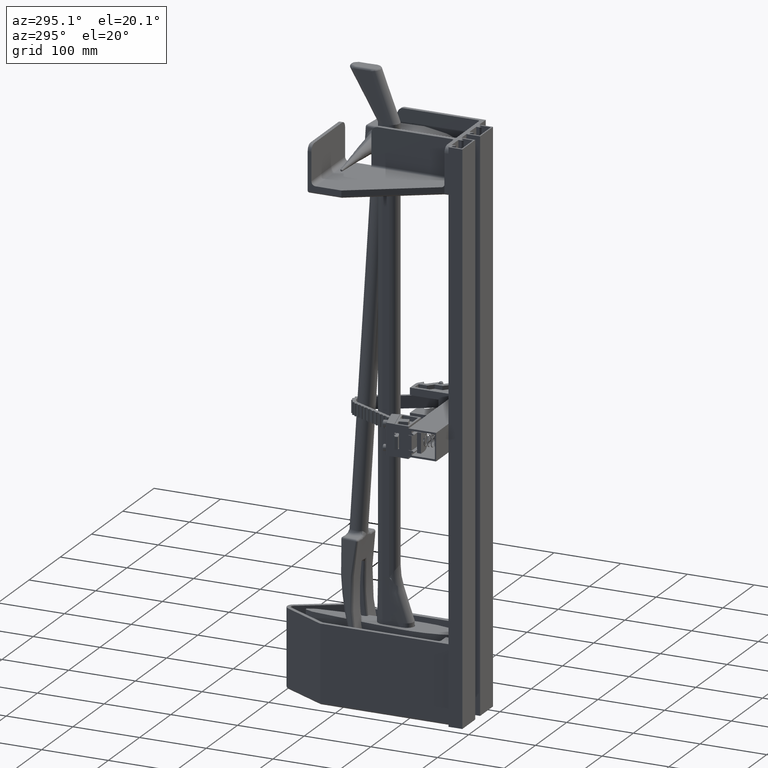
[diagram: clean part render]
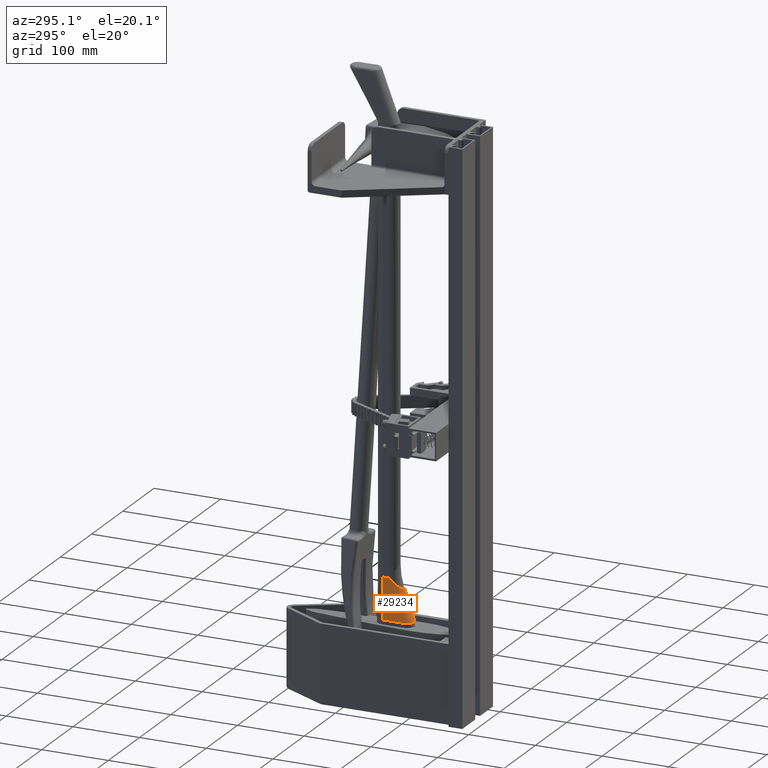
[diagram: same view with one face highlighted and labeled with its STEP entity id]
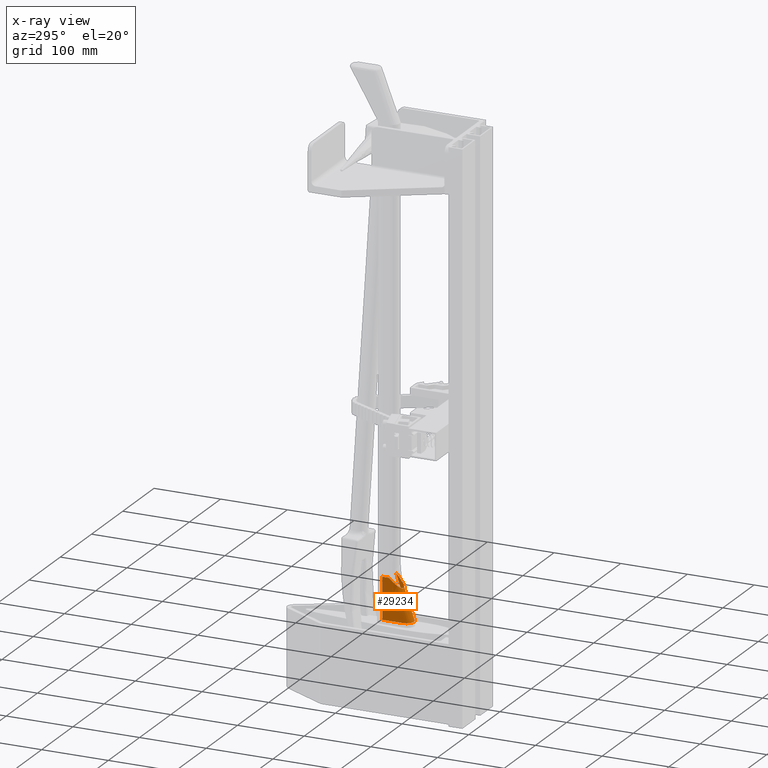
[diagram: x-ray of the same camera — body ghosted, the highlighted face saturated]
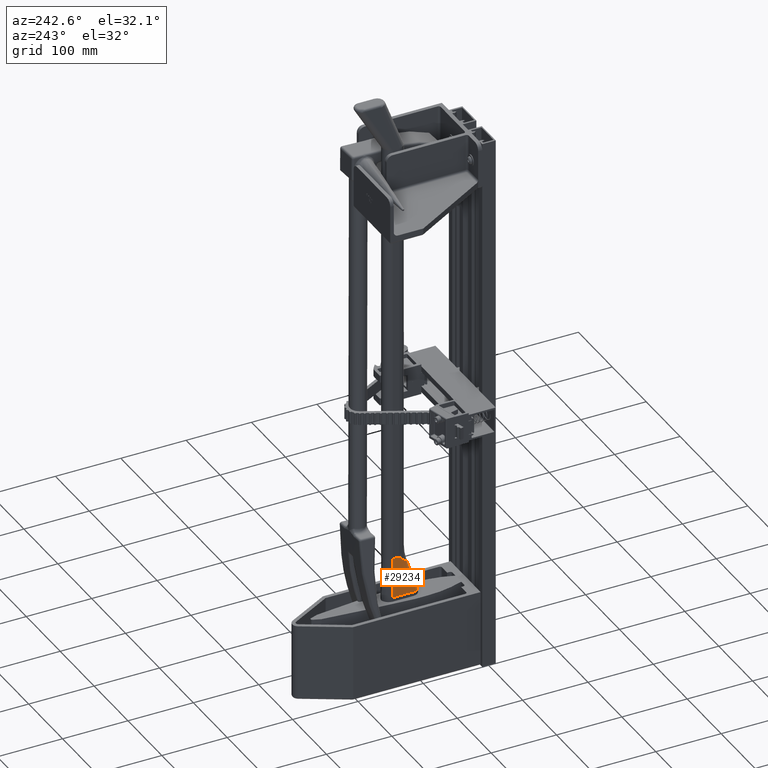
[diagram: same view with one face highlighted and labeled with its STEP entity id]
A machine part, auxiliary view. The second image highlights one B-rep face of the part: STEP entity #29234.
The next image is the same camera in x-ray: the body ghosted, the highlighted face saturated — about 0% of this face is hidden behind the body in this view.
A second angle (auxiliary view) of the same face is appended — the face is thin or edge-on in the first view.
In plain terms, the highlighted face is a freeform B-spline surface patch.
Its self-contained STEP definition (entity closure, byte-faithful):
#21351 = B_SPLINE_CURVE_WITH_KNOTS ( 'NONE', 3,
 ( #52383, #52406, #52407, #52408 ),
 .UNSPECIFIED., .F., .F.,
 ( 4, 4 ),
 ( 0.0000000000000000000, 0.01141846123005012800 ),
 .UNSPECIFIED. ) ;
#21354 = B_SPLINE_CURVE_WITH_KNOTS ( 'NONE', 3,
 ( #52413, #52417, #52418, #52419, #52420, #52421, #52422, #52423, #52424, #52425, #52426, #52427, #52428, #52429, #52430, #52431, #52432, #52433 ),
 .UNSPECIFIED., .F., .F.,
 ( 4, 2, 2, 2, 2, 2, 2, 2, 4 ),
 ( 0.01141846123005012800, 0.1349911535762937900, 0.2585638459225374500, 0.3821365382687811300, 0.5057092306150247100, 0.6292819229612683900, 0.7528546153075121900, 0.8764273076537562000, 1.000000000000000000 ),
 .UNSPECIFIED. ) ;
#21364 = B_SPLINE_CURVE_WITH_KNOTS ( 'NONE', 3,
 ( #52502, #52505, #52506, #52507, #52508, #52509, #52510, #52511, #52512, #52513, #52514, #52515, #52516, #52517, #52518, #52519, #52520, #52521, #52522, #52523, #52524, #52525, #52526, #52527, #52528, #52529, #52530, #52531, #52532, #52533, #52534, #52535, #52536, #52537, #52538, #52539, #52540, #52541, #52542, #52543, #52544, #52545, #52546, #52547, #52548, #52549, #52550, #52551, #52552, #52553, #52554, #52555, #52556, #52557, #52558, #52559, #52560, #52561, #52562, #52563, #52564, #52565, #52566, #52567, #52568, #52569 ),
 .UNSPECIFIED., .F., .F.,
 ( 4, 2, 2, 2, 2, 2, 2, 2, 2, 2, 2, 2, 2, 2, 2, 2, 2, 2, 2, 2, 2, 2, 2, 2, 2, 2, 2, 2, 2, 2, 2, 2, 4 ),
 ( -2.373283447397755100E-005, 0.001693448354923941100, 0.003410629544321859800, 0.006844991923117774000, 0.008562173112515706100, 0.01027935430191363700, 0.01371371668070945100, 0.01543089787010733100, 0.01714807905950521000, 0.01886526024890308700, 0.02058244143830096800, 0.02229962262769884600, 0.02401680381709672700, 0.02487539441179566600, 0.02573398500649460400, 0.02659257560119355000, 0.02745116619589248900, 0.02830975679059143100, 0.02916834738529037000, 0.03088552857468822600, 0.03174411916938715800, 0.03260270976408609400, 0.03431989095348392200, 0.03603707214288175800, 0.03775425333227958700, 0.03947143452167742300, 0.04118861571107525900, 0.04462297808987091700, 0.04805734046866658900, 0.05149170284746225300, 0.05320888403686013100, 0.05406747463155906600, 0.05492606522625800800 ),
 .UNSPECIFIED. ) ;
#23044 = ORIENTED_EDGE ( 'NONE', *, *, #28836, .T. ) ;
#23045 = ORIENTED_EDGE ( 'NONE', *, *, #28850, .T. ) ;
#23046 = ORIENTED_EDGE ( 'NONE', *, *, #28849, .F. ) ;
#23047 = ORIENTED_EDGE ( 'NONE', *, *, #28846, .F. ) ;
#23048 = ORIENTED_EDGE ( 'NONE', *, *, #28837, .F. ) ;
#23049 = ORIENTED_EDGE ( 'NONE', *, *, #28827, .F. ) ;
#23050 = ORIENTED_EDGE ( 'NONE', *, *, #28823, .F. ) ;
#24380 = EDGE_LOOP ( 'NONE', ( #23044, #23045, #23046, #23047, #23048, #23049, #23050 ) ) ;
#25218 = VERTEX_POINT ( 'NONE', #42758 ) ;
#25219 = VERTEX_POINT ( 'NONE', #42760 ) ;
#25222 = VERTEX_POINT ( 'NONE', #42766 ) ;
#25229 = VERTEX_POINT ( 'NONE', #42780 ) ;
#25233 = VERTEX_POINT ( 'NONE', #42788 ) ;
#25235 = VERTEX_POINT ( 'NONE', #42792 ) ;
#25236 = VERTEX_POINT ( 'NONE', #42794 ) ;
#28823 = EDGE_CURVE ( 'NONE', #25218, #25219, #21351, .T. ) ;
#28827 = EDGE_CURVE ( 'NONE', #25219, #25222, #21354, .T. ) ;
#28836 = EDGE_CURVE ( 'NONE', #25218, #25229, #50649, .T. ) ;
#28837 = EDGE_CURVE ( 'NONE', #25222, #25233, #50690, .T. ) ;
#28846 = EDGE_CURVE ( 'NONE', #25233, #25235, #50699, .T. ) ;
#28849 = EDGE_CURVE ( 'NONE', #25235, #25236, #50717, .T. ) ;
#28850 = EDGE_CURVE ( 'NONE', #25229, #25236, #21364, .T. ) ;
#29234 = ADVANCED_FACE ( 'NONE', ( #51268 ), #44188, .T. ) ;
#42758 = CARTESIAN_POINT ( 'NONE',  ( -2.887444690265486900, 2.054374613805310700, 3.750000000000000000 ) ) ;
#42760 = CARTESIAN_POINT ( 'NONE',  ( -2.887733934799204100, 2.070251694982691700, 3.750000000000000000 ) ) ;
#42766 = CARTESIAN_POINT ( 'NONE',  ( -2.012444690265487300, 2.070251695529383700, 3.750000000000000000 ) ) ;
#42780 = CARTESIAN_POINT ( 'NONE',  ( -2.887444690265486900, 1.241874613805310500, 6.199999999999994000 ) ) ;
#42788 = CARTESIAN_POINT ( 'NONE',  ( -2.012444690265487300, 0.8509975320812375200, 3.750000000000000000 ) ) ;
#42792 = CARTESIAN_POINT ( 'NONE',  ( -2.012444690265487300, 0.8509975320812375200, 6.199999999999994000 ) ) ;
#42794 = CARTESIAN_POINT ( 'NONE',  ( -2.012444690265487300, 1.241874613805310500, 6.199999999999994000 ) ) ;
#44188 = B_SPLINE_SURFACE_WITH_KNOTS ( 'NONE', 3, 3, ( 
 ( #63560, #63543, #63545, #63562 ),
 ( #63563, #63564, #63565, #63566 ),
 ( #63567, #63568, #63569, #63570 ),
 ( #63571, #63572, #63573, #63574 ),
 ( #63575, #63576, #63577, #63578 ),
 ( #63579, #63580, #63581, #63582 ),
 ( #63583, #63584, #63585, #63586 ),
 ( #63587, #63588, #63589, #63590 ),
 ( #63591, #63592, #63593, #63594 ),
 ( #63595, #63596, #63597, #63598 ),
 ( #63599, #63600, #63601, #63602 ),
 ( #63603, #63604, #63605, #63606 ),
 ( #63607, #63608, #63609, #63610 ),
 ( #63611, #63612, #63613, #63614 ),
 ( #63615, #63616, #63617, #63618 ),
 ( #63619, #63620, #63621, #63622 ),
 ( #63623, #63624, #63625, #63626 ),
 ( #63627, #63628, #63629, #63630 ),
 ( #63631, #63632, #63633, #63634 ),
 ( #63635, #63636, #63637, #63638 ),
 ( #63639, #63640, #63641, #63642 ),
 ( #63643, #63644, #63645, #63646 ) ),
 .UNSPECIFIED., .F., .F., .F.,
 ( 4, 1, 1, 1, 2, 1, 1, 1, 1, 1, 1, 1, 1, 1, 1, 1, 1, 1, 4 ),
 ( 4, 4 ),
 ( 0.0000000000000000000, 0.08586893513609920900, 0.1717378702721984200, 0.2576068054082976100, 0.3434757405443968300, 0.3845085067603720700, 0.4255412729763473100, 0.4665740391923225400, 0.5076068054082976100, 0.5896723378402480800, 0.6307051040562230400, 0.6717378702721984500, 0.7127706364881736300, 0.7538034027041489200, 0.8358689351360992800, 0.8769017013520743500, 0.9179344675680496400, 0.9589672337840247100, 1.000000000000000000 ),
 ( 0.0000000000000000000, 1.000000000000000000 ),
 .UNSPECIFIED. ) ;
#50649 = LINE ( 'NONE', #52452, #50698 ) ;
#50690 = LINE ( 'NONE', #52456, #50700 ) ;
#50698 = VECTOR ( 'NONE', #52457, 39.37007874015748900 ) ;
#50699 = LINE ( 'NONE', #52496, #50709 ) ;
#50700 = VECTOR ( 'NONE', #52459, 39.37007874015748100 ) ;
#50709 = VECTOR ( 'NONE', #52497, 39.37007874015748100 ) ;
#50717 = LINE ( 'NONE', #52503, #50718 ) ;
#50718 = VECTOR ( 'NONE', #52504, 39.37007874015748100 ) ;
#51268 = FACE_OUTER_BOUND ( 'NONE', #24380, .T. ) ;
#52383 = CARTESIAN_POINT ( 'NONE',  ( -2.887444690265486900, 2.054374613805310700, 3.750000000000000000 ) ) ;
#52406 = CARTESIAN_POINT ( 'NONE',  ( -2.887636731453497000, 2.059664651251404100, 3.750000000000000000 ) ) ;
#52407 = CARTESIAN_POINT ( 'NONE',  ( -2.887732783661121500, 2.064958173177217300, 3.750000000000000000 ) ) ;
#52408 = CARTESIAN_POINT ( 'NONE',  ( -2.887733934799204100, 2.070251694982691700, 3.750000000000000000 ) ) ;
#52413 = CARTESIAN_POINT ( 'NONE',  ( -2.887733934799204100, 2.070251694982691700, 3.750000000000000000 ) ) ;
#52417 = CARTESIAN_POINT ( 'NONE',  ( -2.887732783700208000, 2.127539167017359600, 3.750000000000000000 ) ) ;
#52418 = CARTESIAN_POINT ( 'NONE',  ( -2.876342080623757200, 2.184804098611929500, 3.750000000000000900 ) ) ;
#52419 = CARTESIAN_POINT ( 'NONE',  ( -2.832496148031325800, 2.290657543895097300, 3.750000000000000000 ) ) ;
#52420 = CARTESIAN_POINT ( 'NONE',  ( -2.800058170017525300, 2.339204408773098500, 3.750000000000000000 ) ) ;
#52421 = CARTESIAN_POINT ( 'NONE',  ( -2.719041450536551400, 2.420221128329976200, 3.750000000000000000 ) ) ;
#52422 = CARTESIAN_POINT ( 'NONE',  ( -2.670494585688941000, 2.452659106389258400, 3.750000000000000000 ) ) ;
#52423 = CARTESIAN_POINT ( 'NONE',  ( -2.564641140446850500, 2.496505039080862100, 3.750000000000000900 ) ) ;
#52424 = CARTESIAN_POINT ( 'NONE',  ( -2.507376208862952100, 2.507895742210963300, 3.750000000000000900 ) ) ;
#52425 = CARTESIAN_POINT ( 'NONE',  ( -2.392801265340310100, 2.507895742246744900, 3.750000000000001300 ) ) ;
#52426 = CARTESIAN_POINT ( 'NONE',  ( -2.335536333749296500, 2.496505039152408800, 3.750000000000000000 ) ) ;
#52427 = CARTESIAN_POINT ( 'NONE',  ( -2.229682888479820800, 2.452659106526920300, 3.749999999999999600 ) ) ;
#52428 = CARTESIAN_POINT ( 'NONE',  ( -2.181136023611949200, 2.420221128497960000, 3.749999999999999600 ) ) ;
#52429 = CARTESIAN_POINT ( 'NONE',  ( -2.100119304080373200, 2.339204408991684600, 3.750000000000001300 ) ) ;
#52430 = CARTESIAN_POINT ( 'NONE',  ( -2.067681326036251700, 2.290657544133943600, 3.750000000000000900 ) ) ;
#52431 = CARTESIAN_POINT ( 'NONE',  ( -2.023835393377707300, 2.184804098878161000, 3.750000000000000900 ) ) ;
#52432 = CARTESIAN_POINT ( 'NONE',  ( -2.012444690265486900, 2.127539167290705400, 3.749999999999998700 ) ) ;
#52433 = CARTESIAN_POINT ( 'NONE',  ( -2.012444690265487300, 2.070251695529383700, 3.750000000000000000 ) ) ;
#52452 = CARTESIAN_POINT ( 'NONE',  ( -2.887444690265486900, 1.648124613805310500, 4.974999999999997000 ) ) ;
#52456 = CARTESIAN_POINT ( 'NONE',  ( -2.012444690265487300, 0.8509975320812375200, 3.750000000000000000 ) ) ;
#52457 = DIRECTION ( 'NONE',  ( 0.0000000000000000000, -0.3147745894168386100, 0.9491664542415416700 ) ) ;
#52459 = DIRECTION ( 'NONE',  ( -0.0000000000000000000, -1.000000000000000000, -0.0000000000000000000 ) ) ;
#52496 = CARTESIAN_POINT ( 'NONE',  ( -2.012444690265487300, 0.8509975320812375200, 4.974999999999997000 ) ) ;
#52497 = DIRECTION ( 'NONE',  ( 0.0000000000000000000, 5.575199987069939000E-017, 1.000000000000000000 ) ) ;
#52502 = CARTESIAN_POINT ( 'NONE',  ( -2.887444690265486900, 1.241874613805310500, 6.199999999999994000 ) ) ;
#52503 = CARTESIAN_POINT ( 'NONE',  ( -2.012444690265487300, 1.241874613805310500, 6.199999999999994000 ) ) ;
#52504 = DIRECTION ( 'NONE',  ( -0.0000000000000000000, 1.000000000000000000, -0.0000000000000000000 ) ) ;
#52505 = CARTESIAN_POINT ( 'NONE',  ( -2.887444690265487300, 1.257738935827575000, 6.183995065416011600 ) ) ;
#52506 = CARTESIAN_POINT ( 'NONE',  ( -2.887069130116638700, 1.273726993256215900, 6.167966843071988900 ) ) ;
#52507 = CARTESIAN_POINT ( 'NONE',  ( -2.885543768536128700, 1.305620128700821600, 6.136096877548166800 ) ) ;
#52508 = CARTESIAN_POINT ( 'NONE',  ( -2.884394409371476600, 1.321570668310113200, 6.120208337648398900 ) ) ;
#52509 = CARTESIAN_POINT ( 'NONE',  ( -2.879752200063665100, 1.369395674290729400, 6.072647103515368600 ) ) ;
#52510 = CARTESIAN_POINT ( 'NONE',  ( -2.875078501524240200, 1.401224478700142900, 6.041058209137583300 ) ) ;
#52511 = CARTESIAN_POINT ( 'NONE',  ( -2.865466660443555000, 1.448846212727763900, 5.993838500983623700 ) ) ;
#52512 = CARTESIAN_POINT ( 'NONE',  ( -2.861829580177012800, 1.464700802887551200, 5.978107215002958200 ) ) ;
#52513 = CARTESIAN_POINT ( 'NONE',  ( -2.853608245797624400, 1.496309444635615500, 5.946966681459602300 ) ) ;
#52514 = CARTESIAN_POINT ( 'NONE',  ( -2.849013819564144800, 1.512091611580804500, 5.931553923324878000 ) ) ;
#52515 = CARTESIAN_POINT ( 'NONE',  ( -2.833664192884274500, 1.559297889254801900, 5.885754944239517200 ) ) ;
#52516 = CARTESIAN_POINT ( 'NONE',  ( -2.821357987869455000, 1.590585275066595600, 5.855805908494160100 ) ) ;
#52517 = CARTESIAN_POINT ( 'NONE',  ( -2.799147668904957300, 1.636826456495356700, 5.811568858512238500 ) ) ;
#52518 = CARTESIAN_POINT ( 'NONE',  ( -2.791096968651954200, 1.652151248900110700, 5.796914555460986700 ) ) ;
#52519 = CARTESIAN_POINT ( 'NONE',  ( -2.773726454140488700, 1.682203917721366100, 5.768127894730464600 ) ) ;
#52520 = CARTESIAN_POINT ( 'NONE',  ( -2.764411555526272900, 1.696957932061586800, 5.753945799743782200 ) ) ;
#52521 = CARTESIAN_POINT ( 'NONE',  ( -2.743960553488973700, 1.726005667145872800, 5.726541291532964100 ) ) ;
#52522 = CARTESIAN_POINT ( 'NONE',  ( -2.732862217910681400, 1.740276265385079200, 5.713264181491592100 ) ) ;
#52523 = CARTESIAN_POINT ( 'NONE',  ( -2.708592885143482400, 1.768107983540619500, 5.687604429895243300 ) ) ;
#52524 = CARTESIAN_POINT ( 'NONE',  ( -2.695388423968364800, 1.781705484685522900, 5.675188695125640100 ) ) ;
#52525 = CARTESIAN_POINT ( 'NONE',  ( -2.666564850252347800, 1.807730606931464900, 5.651461884629358500 ) ) ;
#52526 = CARTESIAN_POINT ( 'NONE',  ( -2.651074092998014600, 1.820048721010598000, 5.640248923078174500 ) ) ;
#52527 = CARTESIAN_POINT ( 'NONE',  ( -2.617578877372758000, 1.842729237437338100, 5.619375483162314400 ) ) ;
#52528 = CARTESIAN_POINT ( 'NONE',  ( -2.599751167106001800, 1.852898540152325000, 5.610049619422310800 ) ) ;
#52529 = CARTESIAN_POINT ( 'NONE',  ( -2.570883535404315800, 1.865901668352458300, 5.598306855761462600 ) ) ;
#52530 = CARTESIAN_POINT ( 'NONE',  ( -2.560913301957611600, 1.869860377187460200, 5.594751584417010400 ) ) ;
#52531 = CARTESIAN_POINT ( 'NONE',  ( -2.540179682056284100, 1.876900563782537600, 5.588437696955188500 ) ) ;
#52532 = CARTESIAN_POINT ( 'NONE',  ( -2.529501196270655100, 1.879943131031925200, 5.585715155867428700 ) ) ;
#52533 = CARTESIAN_POINT ( 'NONE',  ( -2.507881523090453900, 1.884870798854404500, 5.581333820322952600 ) ) ;
#52534 = CARTESIAN_POINT ( 'NONE',  ( -2.496884580572021200, 1.886778937046645200, 5.579649123632253600 ) ) ;
#52535 = CARTESIAN_POINT ( 'NONE',  ( -2.474490897193153800, 1.889396923877926900, 5.577348579553450300 ) ) ;
#52536 = CARTESIAN_POINT ( 'NONE',  ( -2.463039069282578100, 1.890103302726335600, 5.576735908819879100 ) ) ;
#52537 = CARTESIAN_POINT ( 'NONE',  ( -2.440138561813884900, 1.890195322421597500, 5.576672240066257800 ) ) ;
#52538 = CARTESIAN_POINT ( 'NONE',  ( -2.428662762752092300, 1.889583438359965500, 5.577216419379214900 ) ) ;
#52539 = CARTESIAN_POINT ( 'NONE',  ( -2.406129756397770600, 1.887130266707679000, 5.579398000223331000 ) ) ;
#52540 = CARTESIAN_POINT ( 'NONE',  ( -2.395081884369245600, 1.885299217471205500, 5.581026408790838100 ) ) ;
#52541 = CARTESIAN_POINT ( 'NONE',  ( -2.362547257665631700, 1.878139692584746200, 5.587428514545413400 ) ) ;
#52542 = CARTESIAN_POINT ( 'NONE',  ( -2.341538258282529900, 1.871059279823101400, 5.593791622994420000 ) ) ;
#52543 = CARTESIAN_POINT ( 'NONE',  ( -2.312244078523050000, 1.858082128092262400, 5.605545529118922200 ) ) ;
#52544 = CARTESIAN_POINT ( 'NONE',  ( -2.302762027075348600, 1.853329869260446500, 5.609869641676106700 ) ) ;
#52545 = CARTESIAN_POINT ( 'NONE',  ( -2.284591128782374800, 1.843212188450608300, 5.619145102640390900 ) ) ;
#52546 = CARTESIAN_POINT ( 'NONE',  ( -2.275940174441064100, 1.837863200821833400, 5.624106219404656500 ) ) ;
#52547 = CARTESIAN_POINT ( 'NONE',  ( -2.250920272010359400, 1.821087604282604100, 5.639568662239764100 ) ) ;
#52548 = CARTESIAN_POINT ( 'NONE',  ( -2.235473815475414600, 1.808937178946517400, 5.650638916093965000 ) ) ;
#52549 = CARTESIAN_POINT ( 'NONE',  ( -2.206615044215360900, 1.783154509997072900, 5.674158634259815600 ) ) ;
#52550 = CARTESIAN_POINT ( 'NONE',  ( -2.193213081603472900, 1.769509866613825600, 5.686620738539955900 ) ) ;
#52551 = CARTESIAN_POINT ( 'NONE',  ( -2.168529235993426100, 1.741445874588789700, 5.712506799885800600 ) ) ;
#52552 = CARTESIAN_POINT ( 'NONE',  ( -2.157217737748756900, 1.726997509856990500, 5.725958661702618400 ) ) ;
#52553 = CARTESIAN_POINT ( 'NONE',  ( -2.136544883108753900, 1.697809830418426400, 5.753524061161115800 ) ) ;
#52554 = CARTESIAN_POINT ( 'NONE',  ( -2.127179053919705500, 1.683049119076425400, 5.767729286507037800 ) ) ;
#52555 = CARTESIAN_POINT ( 'NONE',  ( -2.109738232088198100, 1.653064869172068000, 5.796448690324420600 ) ) ;
#52556 = CARTESIAN_POINT ( 'NONE',  ( -2.101691301071014100, 1.637853003430803900, 5.810992409503332300 ) ) ;
#52557 = CARTESIAN_POINT ( 'NONE',  ( -2.079345622838503000, 1.591673369130699000, 5.855157809381064600 ) ) ;
#52558 = CARTESIAN_POINT ( 'NONE',  ( -2.066828250800020900, 1.560106910254196900, 5.885359533124894700 ) ) ;
#52559 = CARTESIAN_POINT ( 'NONE',  ( -2.046161461135898500, 1.497018666069395800, 5.946539229176229600 ) ) ;
#52560 = CARTESIAN_POINT ( 'NONE',  ( -2.037986859598924100, 1.465468537257039700, 5.977720235030687100 ) ) ;
#52561 = CARTESIAN_POINT ( 'NONE',  ( -2.025040050379489200, 1.401973101714300900, 6.040620238088060000 ) ) ;
#52562 = CARTESIAN_POINT ( 'NONE',  ( -2.020277398466201500, 1.369968719966287300, 6.072343371074518700 ) ) ;
#52563 = CARTESIAN_POINT ( 'NONE',  ( -2.015551389773773100, 1.321898213936887100, 6.120068300700602900 ) ) ;
#52564 = CARTESIAN_POINT ( 'NONE',  ( -2.014380935696433700, 1.305870998583859000, 6.136002836310084700 ) ) ;
#52565 = CARTESIAN_POINT ( 'NONE',  ( -2.013215603095510200, 1.281842711487406000, 6.159960609128557300 ) ) ;
#52566 = CARTESIAN_POINT ( 'NONE',  ( -2.012925705945384000, 1.273837399234147600, 6.167954238204553800 ) ) ;
#52567 = CARTESIAN_POINT ( 'NONE',  ( -2.012540218454374100, 1.257840666813225600, 6.183962470123889300 ) ) ;
#52568 = CARTESIAN_POINT ( 'NONE',  ( -2.012444690265627200, 1.249818259742142600, 6.192008933152827400 ) ) ;
#52569 = CARTESIAN_POINT ( 'NONE',  ( -2.012444690265487300, 1.241874613805310500, 6.199999999999994000 ) ) ;
#63543 = CARTESIAN_POINT ( 'NONE',  ( -2.012444690265487300, 0.8509975320812376300, 4.566666666666664700 ) ) ;
#63545 = CARTESIAN_POINT ( 'NONE',  ( -2.012444690265487300, 0.8509975320812376300, 5.383333333333329300 ) ) ;
#63560 = CARTESIAN_POINT ( 'NONE',  ( -2.012444690265487300, 0.8509975320812376300, 3.750000000000000000 ) ) ;
#63562 = CARTESIAN_POINT ( 'NONE',  ( -2.012444690265487300, 0.8509975320812376300, 6.199999999999994000 ) ) ;
#63563 = CARTESIAN_POINT ( 'NONE',  ( -2.012444690265487300, 0.9257044803180533000, 3.750000000000000000 ) ) ;
#63564 = CARTESIAN_POINT ( 'NONE',  ( -2.012444690265487300, 0.9176451065376847200, 4.566666666666664700 ) ) ;
#63565 = CARTESIAN_POINT ( 'NONE',  ( -2.012444690265487300, 0.9095857327573160200, 5.383333333333329300 ) ) ;
#63566 = CARTESIAN_POINT ( 'NONE',  ( -2.012444690265487300, 0.9015263589769473300, 6.199999999999994000 ) ) ;
#63567 = CARTESIAN_POINT ( 'NONE',  ( -2.012444690265484200, 1.093584623411577100, 3.749999999999998700 ) ) ;
#63568 = CARTESIAN_POINT ( 'NONE',  ( -2.012444690265486000, 1.049620273423587500, 4.566666666666664700 ) ) ;
#63569 = CARTESIAN_POINT ( 'NONE',  ( -2.012444690265487800, 1.005655923435598200, 5.383333333333330200 ) ) ;
#63570 = CARTESIAN_POINT ( 'NONE',  ( -2.012444690265489600, 0.9616915734476085800, 6.199999999999995700 ) ) ;
#63571 = CARTESIAN_POINT ( 'NONE',  ( -2.012444690265489600, 1.460624613805311200, 3.750000000000004400 ) ) ;
#63572 = CARTESIAN_POINT ( 'NONE',  ( -2.012444690265487300, 1.322561766851299200, 4.566666666666667300 ) ) ;
#63573 = CARTESIAN_POINT ( 'NONE',  ( -2.012444690265486000, 1.184498919897287300, 5.383333333333330200 ) ) ;
#63574 = CARTESIAN_POINT ( 'NONE',  ( -2.012444690265484200, 1.046436072943275600, 6.199999999999994000 ) ) ;
#63575 = CARTESIAN_POINT ( 'NONE',  ( -2.012444690265486400, 1.827664604199041900, 3.749999999999995100 ) ) ;
#63576 = CARTESIAN_POINT ( 'NONE',  ( -2.012444690265487300, 1.595503260279007400, 4.566666666666662900 ) ) ;
#63577 = CARTESIAN_POINT ( 'NONE',  ( -2.012444690265489100, 1.363341916358972400, 5.383333333333330200 ) ) ;
#63578 = CARTESIAN_POINT ( 'NONE',  ( -2.012444690265490000, 1.131180572438937700, 6.199999999999997500 ) ) ;
#63579 = CARTESIAN_POINT ( 'NONE',  ( -2.012444690265487300, 1.995544747292567600, 3.750000000000000000 ) ) ;
#63580 = CARTESIAN_POINT ( 'NONE',  ( -2.012444690265487300, 1.727478427164912000, 4.566666666666664700 ) ) ;
#63581 = CARTESIAN_POINT ( 'NONE',  ( -2.012444690265487300, 1.459412107037256300, 5.383333333333329300 ) ) ;
#63582 = CARTESIAN_POINT ( 'NONE',  ( -2.012444690265487300, 1.191345786909600900, 6.199999999999994000 ) ) ;
#63583 = CARTESIAN_POINT ( 'NONE',  ( -2.012444690265487300, 2.105950667587068700, 3.750000000000000000 ) ) ;
#63584 = CARTESIAN_POINT ( 'NONE',  ( -2.012444690265487300, 1.825973774213097500, 4.566666666666664700 ) ) ;
#63585 = CARTESIAN_POINT ( 'NONE',  ( -2.012444690265487300, 1.545996880839126200, 5.383333333333329300 ) ) ;
#63586 = CARTESIAN_POINT ( 'NONE',  ( -2.012444690265487300, 1.266019987465155200, 6.199999999999994000 ) ) ;
#63587 = CARTESIAN_POINT ( 'NONE',  ( -2.021083427470921300, 2.173514746676068900, 3.749999999999996400 ) ) ;
#63588 = CARTESIAN_POINT ( 'NONE',  ( -2.019543797834736600, 1.887533695312531200, 4.566666666666662000 ) ) ;
#63589 = CARTESIAN_POINT ( 'NONE',  ( -2.018004168198552300, 1.601552643948994000, 5.383333333333327500 ) ) ;
#63590 = CARTESIAN_POINT ( 'NONE',  ( -2.016464538562368500, 1.315571592585456300, 6.199999999999993100 ) ) ;
#63591 = CARTESIAN_POINT ( 'NONE',  ( -2.053403258837174700, 2.262524191525541200, 3.750000000000004900 ) ) ;
#63592 = CARTESIAN_POINT ( 'NONE',  ( -2.047640825671536800, 1.972084038559996500, 4.566666666666667300 ) ) ;
#63593 = CARTESIAN_POINT ( 'NONE',  ( -2.041878392505899000, 1.681643885594451500, 5.383333333333328400 ) ) ;
#63594 = CARTESIAN_POINT ( 'NONE',  ( -2.036115959340261100, 1.391203732628906400, 6.199999999999990400 ) ) ;
#63595 = CARTESIAN_POINT ( 'NONE',  ( -2.100662512269801500, 2.338542255333214000, 3.749999999999997800 ) ) ;
#63596 = CARTESIAN_POINT ( 'NONE',  ( -2.090758718810750100, 2.047582424887649300, 4.566666666666662000 ) ) ;
#63597 = CARTESIAN_POINT ( 'NONE',  ( -2.080854925351699200, 1.756622594442083700, 5.383333333333325800 ) ) ;
#63598 = CARTESIAN_POINT ( 'NONE',  ( -2.070951131892647900, 1.465662763996518500, 6.199999999999988600 ) ) ;
#63599 = CARTESIAN_POINT ( 'NONE',  ( -2.179114218461857300, 2.421934092714247600, 3.750000000000004900 ) ) ;
#63600 = CARTESIAN_POINT ( 'NONE',  ( -2.165385816573240700, 2.134000491295939400, 4.566666666666666400 ) ) ;
#63601 = CARTESIAN_POINT ( 'NONE',  ( -2.151657414684624100, 1.846066889877630700, 5.383333333333328400 ) ) ;
#63602 = CARTESIAN_POINT ( 'NONE',  ( -2.137929012796007600, 1.558133288459322000, 6.199999999999989500 ) ) ;
#63603 = CARTESIAN_POINT ( 'NONE',  ( -2.274877925474307900, 2.477544907131228800, 3.749999999999992900 ) ) ;
#63604 = CARTESIAN_POINT ( 'NONE',  ( -2.261962731199840300, 2.195871764151406900, 4.566666666666660200 ) ) ;
#63605 = CARTESIAN_POINT ( 'NONE',  ( -2.249047536925372600, 1.914198621171584900, 5.383333333333328400 ) ) ;
#63606 = CARTESIAN_POINT ( 'NONE',  ( -2.236132342650904100, 1.632525478191762900, 6.199999999999995700 ) ) ;
#63607 = CARTESIAN_POINT ( 'NONE',  ( -2.378511104450259200, 2.504451583512533400, 3.750000000000002200 ) ) ;
#63608 = CARTESIAN_POINT ( 'NONE',  ( -2.370769982250002400, 2.227116645443899300, 4.566666666666667300 ) ) ;
#63609 = CARTESIAN_POINT ( 'NONE',  ( -2.363028860049745100, 1.949781707375265500, 5.383333333333332900 ) ) ;
#63610 = CARTESIAN_POINT ( 'NONE',  ( -2.355287737849487900, 1.672446769306631400, 6.199999999999998400 ) ) ;
#63611 = CARTESIAN_POINT ( 'NONE',  ( -2.458072300423119700, 2.510232930575500500, 3.750000000000008400 ) ) ;
#63612 = CARTESIAN_POINT ( 'NONE',  ( -2.455363097037241100, 2.234441484156023600, 4.566666666666668200 ) ) ;
#63613 = CARTESIAN_POINT ( 'NONE',  ( -2.452653893651362000, 1.958650037736546300, 5.383333333333328400 ) ) ;
#63614 = CARTESIAN_POINT ( 'NONE',  ( -2.449944690265483800, 1.682858591317069300, 6.199999999999987700 ) ) ;
#63615 = CARTESIAN_POINT ( 'NONE',  ( -2.537371383896022300, 2.501569026210281000, 3.749999999999999600 ) ) ;
#63616 = CARTESIAN_POINT ( 'NONE',  ( -2.539781470157845200, 2.225194940575730800, 4.566666666666667300 ) ) ;
#63617 = CARTESIAN_POINT ( 'NONE',  ( -2.542191556419668900, 1.948820854941180300, 5.383333333333334600 ) ) ;
#63618 = CARTESIAN_POINT ( 'NONE',  ( -2.544601642681491700, 1.672446769306629800, 6.200000000000002000 ) ) ;
#63619 = CARTESIAN_POINT ( 'NONE',  ( -2.639960208360451400, 2.470920402855348200, 3.749999999999990700 ) ) ;
#63620 = CARTESIAN_POINT ( 'NONE',  ( -2.647892484866989800, 2.191455427967486700, 4.566666666666651300 ) ) ;
#63621 = CARTESIAN_POINT ( 'NONE',  ( -2.655824761373528600, 1.911990453079625200, 5.383333333333314200 ) ) ;
#63622 = CARTESIAN_POINT ( 'NONE',  ( -2.663757037880067000, 1.632525478191764000, 6.199999999999976200 ) ) ;
#63623 = CARTESIAN_POINT ( 'NONE',  ( -2.733643397326471100, 2.411872029752863500, 3.750000000000015500 ) ) ;
#63624 = CARTESIAN_POINT ( 'NONE',  ( -2.743082387462636400, 2.127292449321684000, 4.566666666666678000 ) ) ;
#63625 = CARTESIAN_POINT ( 'NONE',  ( -2.752521377598802200, 1.842712868890504100, 5.383333333333340000 ) ) ;
#63626 = CARTESIAN_POINT ( 'NONE',  ( -2.761960367734967600, 1.558133288459324200, 6.200000000000002800 ) ) ;
#63627 = CARTESIAN_POINT ( 'NONE',  ( -2.809018127043966900, 2.325688975349806700, 3.749999999999986700 ) ) ;
#63628 = CARTESIAN_POINT ( 'NONE',  ( -2.815658167575420600, 2.039013571565377000, 4.566666666666655800 ) ) ;
#63629 = CARTESIAN_POINT ( 'NONE',  ( -2.822298208106873000, 1.752338167780947800, 5.383333333333327500 ) ) ;
#63630 = CARTESIAN_POINT ( 'NONE',  ( -2.828938248638325900, 1.465662763996518100, 6.199999999999998400 ) ) ;
#63631 = CARTESIAN_POINT ( 'NONE',  ( -2.853488447096306700, 2.248006456759588100, 3.750000000000006700 ) ) ;
#63632 = CARTESIAN_POINT ( 'NONE',  ( -2.856916771794441700, 1.962405548716026800, 4.566666666666668200 ) ) ;
#63633 = CARTESIAN_POINT ( 'NONE',  ( -2.860345096492577200, 1.676804640672465500, 5.383333333333330200 ) ) ;
#63634 = CARTESIAN_POINT ( 'NONE',  ( -2.863773421190712200, 1.391203732628904400, 6.199999999999992200 ) ) ;
#63635 = CARTESIAN_POINT ( 'NONE',  ( -2.882557871263167600, 2.157883089364878600, 3.749999999999996400 ) ) ;
#63636 = CARTESIAN_POINT ( 'NONE',  ( -2.882846861498313800, 1.877112590438404100, 4.566666666666662000 ) ) ;
#63637 = CARTESIAN_POINT ( 'NONE',  ( -2.883135851733459500, 1.596342091511930000, 5.383333333333327500 ) ) ;
#63638 = CARTESIAN_POINT ( 'NONE',  ( -2.883424841968604800, 1.315571592585455200, 6.199999999999993100 ) ) ;
#63639 = CARTESIAN_POINT ( 'NONE',  ( -2.888739796416477800, 2.090050085855909200, 3.749999999999999600 ) ) ;
#63640 = CARTESIAN_POINT ( 'NONE',  ( -2.888308094366147700, 1.815373386392324300, 4.566666666666664700 ) ) ;
#63641 = CARTESIAN_POINT ( 'NONE',  ( -2.887876392315817100, 1.540696686928739700, 5.383333333333329300 ) ) ;
#63642 = CARTESIAN_POINT ( 'NONE',  ( -2.887444690265486900, 1.266019987465155000, 6.199999999999994000 ) ) ;
#63643 = CARTESIAN_POINT ( 'NONE',  ( -2.887444690265486900, 2.054374613805310700, 3.750000000000000000 ) ) ;
#63644 = CARTESIAN_POINT ( 'NONE',  ( -2.887444690265486900, 1.783541280471977200, 4.566666666666664700 ) ) ;
#63645 = CARTESIAN_POINT ( 'NONE',  ( -2.887444690265486900, 1.512707947138644000, 5.383333333333329300 ) ) ;
#63646 = CARTESIAN_POINT ( 'NONE',  ( -2.887444690265486900, 1.241874613805310500, 6.199999999999994000 ) ) ;